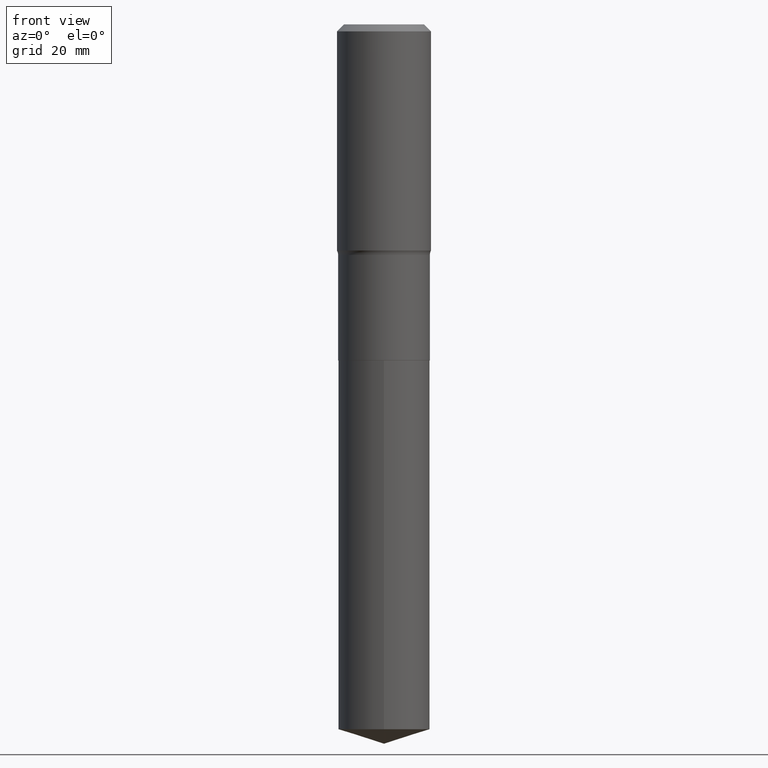
[diagram: clean part render]
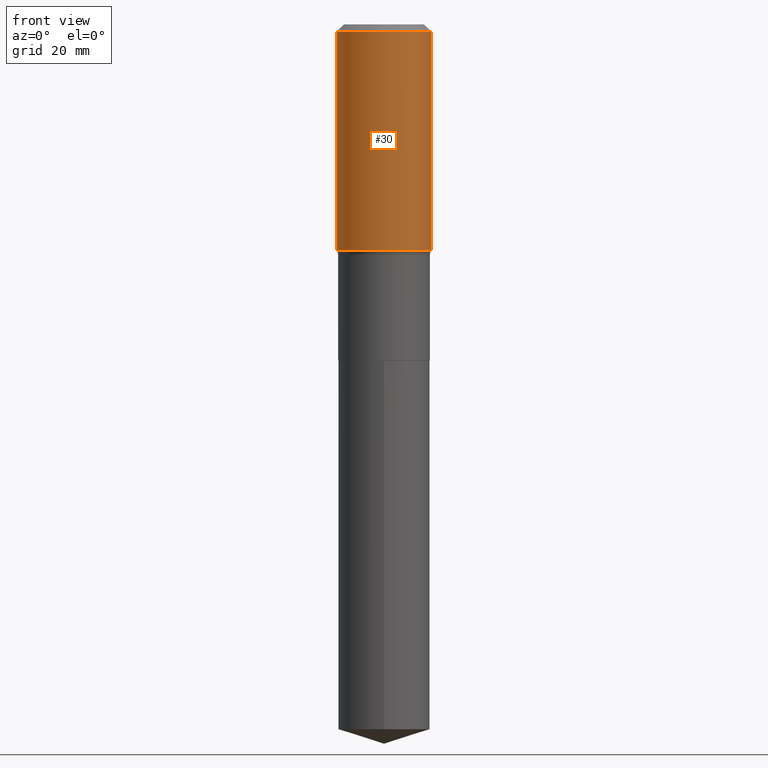
[diagram: same view with one face highlighted and labeled with its STEP entity id]
A machine part, front view. The second image highlights one B-rep face of the part: STEP entity #30.
In plain terms, the highlighted cylindrical surface (partial cylindrical patch) has radius 10 mm, axis along (-0, 0, 1).
Its self-contained STEP definition (entity closure, byte-faithful):
#17 = EDGE_CURVE ( 'NONE', #266, #156, #437, .T. ) ;
#27 = VECTOR ( 'NONE', #434, 39.37007874015748143 ) ;
#30 = ADVANCED_FACE ( 'NONE', ( #246 ), #210, .T. ) ;
#38 = CARTESIAN_POINT ( 'NONE',  ( 0.3937000000000002164, -9.362261389830614750E-15, -1.894058235412674485 ) ) ;
#48 = ORIENTED_EDGE ( 'NONE', *, *, #17, .T. ) ;
#70 = LINE ( 'NONE', #217, #387 ) ;
#76 = CARTESIAN_POINT ( 'NONE',  ( -0.3937000000000002164, -3.815662232938014381E-15, -1.894058235412674485 ) ) ;
#78 = DIRECTION ( 'NONE',  ( -2.445468806185136597E-29, 3.491481338843145583E-15, 1.000000000000000000 ) ) ;
#95 = CARTESIAN_POINT ( 'NONE',  ( 0.3937000000000001054, -2.749192406205084005E-15, 1.919750796630860452E-29 ) ) ;
#97 = VERTEX_POINT ( 'NONE', #76 ) ;
#100 = AXIS2_PLACEMENT_3D ( 'NONE', #240, #282, #273 ) ;
#114 = CARTESIAN_POINT ( 'NONE',  ( 0.3937000000000000499, -2.955381836670466588E-15, -0.05905500000000039190 ) ) ;
#152 = EDGE_CURVE ( 'NONE', #97, #242, #70, .T. ) ;
#156 = VERTEX_POINT ( 'NONE', #114 ) ;
#163 = CARTESIAN_POINT ( 'NONE',  ( 1.444171603492641897E-30, -2.061894304653833219E-16, -0.05905500000000039190 ) ) ;
#199 = CIRCLE ( 'NONE', #329, 0.3937000000000000499 ) ;
#210 = CYLINDRICAL_SURFACE ( 'NONE', #100, 0.3937000000000001054 ) ;
#217 = CARTESIAN_POINT ( 'NONE',  ( -0.3937000000000001054, 2.797406750687515181E-15, -1.936584745033357016E-29 ) ) ;
#227 = ORIENTED_EDGE ( 'NONE', *, *, #352, .T. ) ;
#240 = CARTESIAN_POINT ( 'NONE',  ( 0.000000000000000000, 0.000000000000000000, 0.000000000000000000 ) ) ;
#242 = VERTEX_POINT ( 'NONE', #404 ) ;
#246 = FACE_OUTER_BOUND ( 'NONE', #408, .T. ) ;
#266 = VERTEX_POINT ( 'NONE', #38 ) ;
#273 = DIRECTION ( 'NONE',  ( 1.000000000000000000, -6.982962677686266711E-15, 4.876176775795935793E-29 ) ) ;
#282 = DIRECTION ( 'NONE',  ( -2.445468806185136597E-29, 3.491481338843145583E-15, 1.000000000000000000 ) ) ;
#329 = AXIS2_PLACEMENT_3D ( 'NONE', #163, #458, #419 ) ;
#337 = DIRECTION ( 'NONE',  ( -2.445468806185136877E-29, 3.491481338843145188E-15, 1.000000000000000000 ) ) ;
#352 = EDGE_CURVE ( 'NONE', #97, #266, #369, .T. ) ;
#359 = ORIENTED_EDGE ( 'NONE', *, *, #490, .F. ) ;
#369 = CIRCLE ( 'NONE', #440, 0.3937000000000002164 ) ;
#387 = VECTOR ( 'NONE', #337, 39.37007874015748143 ) ;
#404 = CARTESIAN_POINT ( 'NONE',  ( -0.3937000000000000499, -6.122224563579416798E-16, -0.05905500000000039190 ) ) ;
#408 = EDGE_LOOP ( 'NONE', ( #435, #227, #48, #359 ) ) ;
#417 = CARTESIAN_POINT ( 'NONE',  ( 4.631860331799759695E-29, -6.613068983625529956E-15, -1.894058235412674485 ) ) ;
#419 = DIRECTION ( 'NONE',  ( 1.000000000000000000, -6.982962677686265922E-15, 0.000000000000000000 ) ) ;
#421 = DIRECTION ( 'NONE',  ( 1.000000000000000000, -6.982962677686269866E-15, 0.000000000000000000 ) ) ;
#434 = DIRECTION ( 'NONE',  ( -2.445468806185136877E-29, 3.491481338843145188E-15, 1.000000000000000000 ) ) ;
#435 = ORIENTED_EDGE ( 'NONE', *, *, #152, .F. ) ;
#437 = LINE ( 'NONE', #95, #27 ) ;
#440 = AXIS2_PLACEMENT_3D ( 'NONE', #417, #78, #421 ) ;
#458 = DIRECTION ( 'NONE',  ( -2.445468806185136597E-29, 3.491481338843145583E-15, 1.000000000000000000 ) ) ;
#490 = EDGE_CURVE ( 'NONE', #242, #156, #199, .T. ) ;